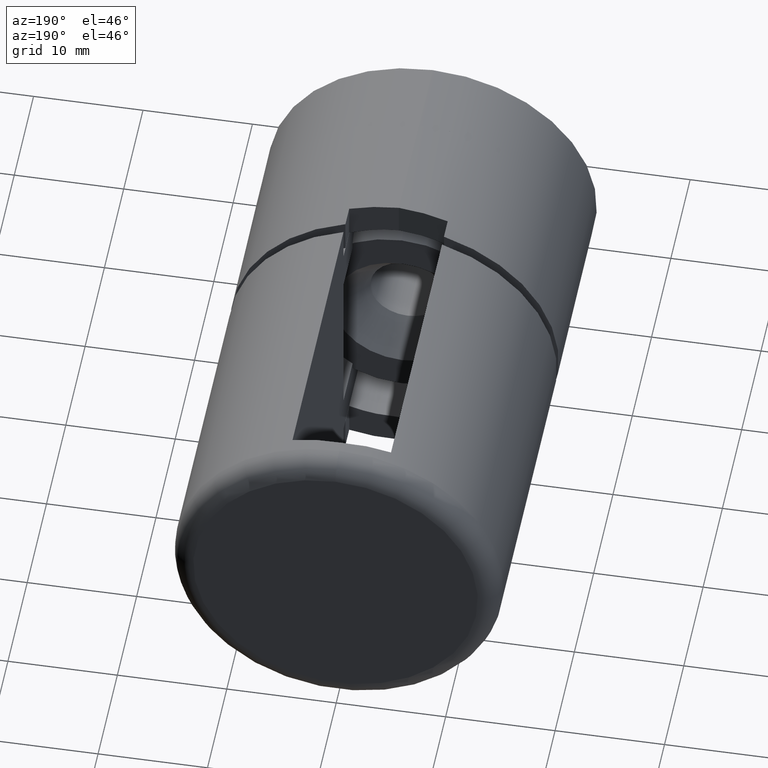
[diagram: clean part render]
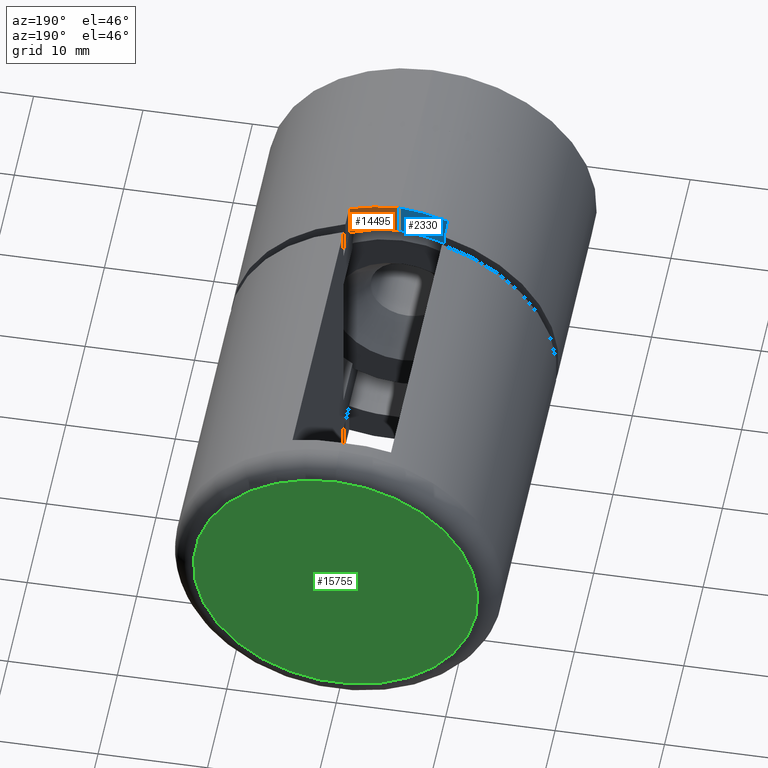
[diagram: same view with three faces highlighted in distinct colors, each labeled with its STEP entity id]
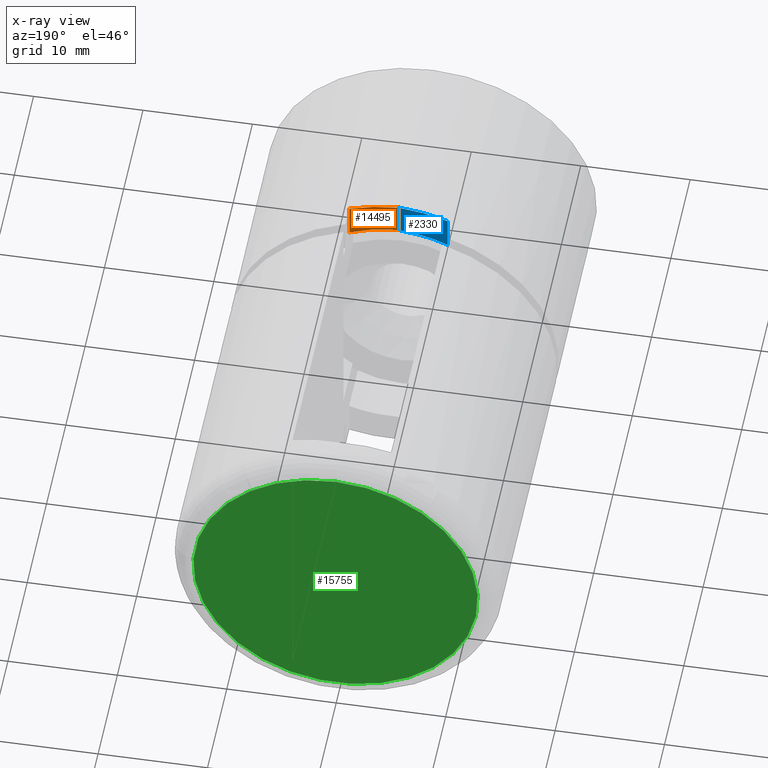
[diagram: x-ray of the same camera — body ghosted, the three highlighted faces saturated]
A machine part, auxiliary view with three faces highlighted in distinct colors.
The next image is the same camera in x-ray (body ghosted, the three faces saturated) — at least one of them is partly hidden behind the body in this view.
Their STEP definitions:

[orange] entity #14495 — the highlighted planar face has unit normal (0.0523, -0.9986, -0).
#301 = AXIS2_PLACEMENT_3D ( 'NONE', #8761, #16853, #8876 ) ;
#475 = VERTEX_POINT ( 'NONE', #13259 ) ;
#1141 = EDGE_CURVE ( 'NONE', #3556, #4096, #10408, .T. ) ;
#1859 = ORIENTED_EDGE ( 'NONE', *, *, #1141, .T. ) ;
#2489 = DIRECTION ( 'NONE',  ( -0.0000000000000000000, -0.0000000000000000000, 1.000000000000000000 ) ) ;
#3185 = CARTESIAN_POINT ( 'NONE',  ( 0.0000000000000000000, 2.189999999999999100, 15.00000000000000000 ) ) ;
#3364 = FACE_OUTER_BOUND ( 'NONE', #9624, .T. ) ;
#3556 = VERTEX_POINT ( 'NONE', #10166 ) ;
#3665 = EDGE_CURVE ( 'NONE', #475, #8822, #9401, .T. ) ;
#3923 = VECTOR ( 'NONE', #2489, 1000.000000000000000 ) ;
#4096 = VERTEX_POINT ( 'NONE', #3185 ) ;
#5456 = EDGE_CURVE ( 'NONE', #8822, #4096, #13552, .T. ) ;
#5809 = EDGE_CURVE ( 'NONE', #475, #3556, #9286, .T. ) ;
#6089 = PLANE ( 'NONE',  #301 ) ;
#7485 = CARTESIAN_POINT ( 'NONE',  ( 0.0000000000000000000, 2.189999999999999100, 12.09999999999999600 ) ) ;
#7577 = CARTESIAN_POINT ( 'NONE',  ( -4.500000000000000000, 1.954164993226297200, -15.00000000000000000 ) ) ;
#7718 = CARTESIAN_POINT ( 'NONE',  ( -1.529386172815875100, 2.109848267016523900, 14.99999999999999800 ) ) ;
#7755 = CARTESIAN_POINT ( 'NONE',  ( 0.0000000000000000000, 2.189999999999999100, -15.00000000000000000 ) ) ;
#7972 = ORIENTED_EDGE ( 'NONE', *, *, #3665, .F. ) ;
#8761 = CARTESIAN_POINT ( 'NONE',  ( 0.0000000000000000000, 2.189999999999999100, -15.00000000000000000 ) ) ;
#8822 = VERTEX_POINT ( 'NONE', #11074 ) ;
#8876 = DIRECTION ( 'NONE',  ( -0.9986295347545737200, -0.05233595624294751900, 0.0000000000000000000 ) ) ;
#8883 = DIRECTION ( 'NONE',  ( -0.0000000000000000000, -0.0000000000000000000, 1.000000000000000000 ) ) ;
#8991 = ORIENTED_EDGE ( 'NONE', *, *, #5809, .T. ) ;
#9286 =( BOUNDED_CURVE ( )  B_SPLINE_CURVE ( 3, ( #12693, #15461, #16833, #7485 ),
 .UNSPECIFIED., .F., .T. ) 
 B_SPLINE_CURVE_WITH_KNOTS ( ( 4, 4 ),
 ( 1.189740440798325400, 1.570796326794896600 ),
 .UNSPECIFIED. ) 
 CURVE ( )  GEOMETRIC_REPRESENTATION_ITEM ( )  RATIONAL_B_SPLINE_CURVE ( ( 1.000000000000000000, 0.9879362610244385400, 0.9879362610244385400, 1.000000000000000000 ) ) 
 REPRESENTATION_ITEM ( '' )  );
#9401 = LINE ( 'NONE', #7577, #12503 ) ;
#9624 = EDGE_LOOP ( 'NONE', ( #7972, #8991, #1859, #10640 ) ) ;
#10166 = CARTESIAN_POINT ( 'NONE',  ( 0.0000000000000000000, 2.189999999999999100, 12.09999999999999600 ) ) ;
#10408 = LINE ( 'NONE', #7755, #3923 ) ;
#10640 = ORIENTED_EDGE ( 'NONE', *, *, #5456, .F. ) ;
#11074 = CARTESIAN_POINT ( 'NONE',  ( -4.500000000000000000, 1.954164993226297200, 14.30908802125418300 ) ) ;
#11598 = CARTESIAN_POINT ( 'NONE',  ( 0.0000000000000000000, 2.189999999999999100, 15.00000000000000000 ) ) ;
#12503 = VECTOR ( 'NONE', #8883, 1000.000000000000000 ) ;
#12693 = CARTESIAN_POINT ( 'NONE',  ( -4.500000000000000000, 1.954164993226297200, 11.23209686567917100 ) ) ;
#13259 = CARTESIAN_POINT ( 'NONE',  ( -4.500000000000000000, 1.954164993226297200, 11.23209686567917100 ) ) ;
#13552 =( BOUNDED_CURVE ( )  B_SPLINE_CURVE ( 3, ( #15644, #16910, #7718, #11598 ),
 .UNSPECIFIED., .F., .F. ) 
 B_SPLINE_CURVE_WITH_KNOTS ( ( 4, 4 ),
 ( 1.266103672779499200, 1.570796326794896600 ),
 .UNSPECIFIED. ) 
 CURVE ( )  GEOMETRIC_REPRESENTATION_ITEM ( )  RATIONAL_B_SPLINE_CURVE ( ( 1.000000000000000000, 0.9922784838777378700, 0.9922784838777378700, 1.000000000000000000 ) ) 
 REPRESENTATION_ITEM ( '' )  );
#14495 = ADVANCED_FACE ( 'NONE', ( #3364 ), #6089, .F. ) ;
#15461 = CARTESIAN_POINT ( 'NONE',  ( -3.064614348767007000, 2.029390367622165400, 11.80716628573424600 ) ) ;
#15644 = CARTESIAN_POINT ( 'NONE',  ( -4.500000000000000000, 1.954164993226297200, 14.30908802125418300 ) ) ;
#16833 = CARTESIAN_POINT ( 'NONE',  ( -1.546297773925853400, 2.108961967558229800, 12.10000000000000000 ) ) ;
#16853 = DIRECTION ( 'NONE',  ( -0.05233595624294751900, 0.9986295347545737200, 0.0000000000000000000 ) ) ;
#16910 = CARTESIAN_POINT ( 'NONE',  ( -3.041058575645905600, 2.030624873380737500, 14.76790387309894600 ) ) ;

[blue] entity #2330 — the highlighted planar face has unit normal (-0.0523, -0.9986, 0).
#305 = CARTESIAN_POINT ( 'NONE',  ( 4.500000000000000000, 1.954164993226297200, 14.30908802125418300 ) ) ;
#1011 = EDGE_LOOP ( 'NONE', ( #12671, #11116, #3109, #11492 ) ) ;
#1141 = EDGE_CURVE ( 'NONE', #3556, #4096, #10408, .T. ) ;
#1358 = CARTESIAN_POINT ( 'NONE',  ( 1.546297773925850300, 2.108961967558231200, 12.10000000000000000 ) ) ;
#1530 = CARTESIAN_POINT ( 'NONE',  ( 3.064614348767004300, 2.029390367622167200, 11.80716628573424600 ) ) ;
#2330 = ADVANCED_FACE ( 'NONE', ( #8742 ), #6173, .F. ) ;
#2489 = DIRECTION ( 'NONE',  ( -0.0000000000000000000, -0.0000000000000000000, 1.000000000000000000 ) ) ;
#2556 = CARTESIAN_POINT ( 'NONE',  ( 4.500000000000000000, 1.954164993226297200, 14.30908802125418300 ) ) ;
#3109 = ORIENTED_EDGE ( 'NONE', *, *, #7558, .T. ) ;
#3185 = CARTESIAN_POINT ( 'NONE',  ( 0.0000000000000000000, 2.189999999999999100, 15.00000000000000000 ) ) ;
#3556 = VERTEX_POINT ( 'NONE', #10166 ) ;
#3923 = VECTOR ( 'NONE', #2489, 1000.000000000000000 ) ;
#4096 = VERTEX_POINT ( 'NONE', #3185 ) ;
#5596 = CARTESIAN_POINT ( 'NONE',  ( 1.529386172815872400, 2.109848267016525700, 14.99999999999999800 ) ) ;
#6173 = PLANE ( 'NONE',  #14816 ) ;
#7468 = CARTESIAN_POINT ( 'NONE',  ( 4.500000000000000000, 1.954164993226297200, -15.00000000000000000 ) ) ;
#7558 = EDGE_CURVE ( 'NONE', #10812, #11708, #11193, .T. ) ;
#7755 = CARTESIAN_POINT ( 'NONE',  ( 0.0000000000000000000, 2.189999999999999100, -15.00000000000000000 ) ) ;
#7817 =( BOUNDED_CURVE ( )  B_SPLINE_CURVE ( 3, ( #8393, #5596, #14977, #305 ),
 .UNSPECIFIED., .F., .F. ) 
 B_SPLINE_CURVE_WITH_KNOTS ( ( 4, 4 ),
 ( 4.712388980384689700, 5.017081634400087300 ),
 .UNSPECIFIED. ) 
 CURVE ( )  GEOMETRIC_REPRESENTATION_ITEM ( )  RATIONAL_B_SPLINE_CURVE ( ( 1.000000000000000000, 0.9922784838777378700, 0.9922784838777378700, 1.000000000000000000 ) ) 
 REPRESENTATION_ITEM ( '' )  );
#7937 = EDGE_CURVE ( 'NONE', #3556, #10812, #12600, .T. ) ;
#8393 = CARTESIAN_POINT ( 'NONE',  ( 0.0000000000000000000, 2.189999999999999100, 15.00000000000000000 ) ) ;
#8663 = DIRECTION ( 'NONE',  ( -0.9986295347545737200, 0.05233595624294751900, 0.0000000000000000000 ) ) ;
#8742 = FACE_OUTER_BOUND ( 'NONE', #1011, .T. ) ;
#9561 = CARTESIAN_POINT ( 'NONE',  ( 0.0000000000000000000, 2.189999999999999100, 12.09999999999999600 ) ) ;
#10166 = CARTESIAN_POINT ( 'NONE',  ( 0.0000000000000000000, 2.189999999999999100, 12.09999999999999600 ) ) ;
#10408 = LINE ( 'NONE', #7755, #3923 ) ;
#10812 = VERTEX_POINT ( 'NONE', #15608 ) ;
#11116 = ORIENTED_EDGE ( 'NONE', *, *, #7937, .T. ) ;
#11193 = LINE ( 'NONE', #16173, #14760 ) ;
#11492 = ORIENTED_EDGE ( 'NONE', *, *, #12714, .F. ) ;
#11708 = VERTEX_POINT ( 'NONE', #2556 ) ;
#12600 =( BOUNDED_CURVE ( )  B_SPLINE_CURVE ( 3, ( #9561, #1358, #1530, #13279 ),
 .UNSPECIFIED., .F., .T. ) 
 B_SPLINE_CURVE_WITH_KNOTS ( ( 4, 4 ),
 ( 4.712388980384689700, 5.093444866381260800 ),
 .UNSPECIFIED. ) 
 CURVE ( )  GEOMETRIC_REPRESENTATION_ITEM ( )  RATIONAL_B_SPLINE_CURVE ( ( 1.000000000000000000, 0.9879362610244385400, 0.9879362610244385400, 1.000000000000000000 ) ) 
 REPRESENTATION_ITEM ( '' )  );
#12671 = ORIENTED_EDGE ( 'NONE', *, *, #1141, .F. ) ;
#12714 = EDGE_CURVE ( 'NONE', #4096, #11708, #7817, .T. ) ;
#13279 = CARTESIAN_POINT ( 'NONE',  ( 4.500000000000000000, 1.954164993226297700, 11.23209686567917800 ) ) ;
#14098 = DIRECTION ( 'NONE',  ( 0.05233595624294751900, 0.9986295347545737200, 0.0000000000000000000 ) ) ;
#14760 = VECTOR ( 'NONE', #14850, 1000.000000000000000 ) ;
#14816 = AXIS2_PLACEMENT_3D ( 'NONE', #7468, #14098, #8663 ) ;
#14850 = DIRECTION ( 'NONE',  ( -0.0000000000000000000, -0.0000000000000000000, 1.000000000000000000 ) ) ;
#14977 = CARTESIAN_POINT ( 'NONE',  ( 3.041058575645903400, 2.030624873380738800, 14.76790387309894600 ) ) ;
#15608 = CARTESIAN_POINT ( 'NONE',  ( 4.500000000000000000, 1.954164993226297700, 11.23209686567917800 ) ) ;
#16173 = CARTESIAN_POINT ( 'NONE',  ( 4.500000000000000000, 1.954164993226297200, -15.00000000000000000 ) ) ;

[green] entity #15755 — the highlighted planar face has unit normal (0, 1, 0).
#123 = ORIENTED_EDGE ( 'NONE', *, *, #17189, .T. ) ;
#1708 = CARTESIAN_POINT ( 'NONE',  ( 0.0000000000000000000, 1.500000000000000000, -13.00000000000000000 ) ) ;
#3299 = AXIS2_PLACEMENT_3D ( 'NONE', #9812, #9990, #11328 ) ;
#3861 = VERTEX_POINT ( 'NONE', #1708 ) ;
#4528 = CARTESIAN_POINT ( 'NONE',  ( 0.0000000000000000000, 1.500000000000000000, 0.0000000000000000000 ) ) ;
#8482 = PLANE ( 'NONE',  #3299 ) ;
#8719 = EDGE_LOOP ( 'NONE', ( #123 ) ) ;
#9812 = CARTESIAN_POINT ( 'NONE',  ( 0.0000000000000000000, 1.500000000000000000, 0.0000000000000000000 ) ) ;
#9990 = DIRECTION ( 'NONE',  ( 0.0000000000000000000, -1.000000000000000000, 0.0000000000000000000 ) ) ;
#10141 = CIRCLE ( 'NONE', #13954, 13.00000000000000000 ) ;
#11122 = DIRECTION ( 'NONE',  ( 0.0000000000000000000, 0.0000000000000000000, -1.000000000000000000 ) ) ;
#11328 = DIRECTION ( 'NONE',  ( 0.0000000000000000000, -0.0000000000000000000, -1.000000000000000000 ) ) ;
#12397 = DIRECTION ( 'NONE',  ( 0.0000000000000000000, -1.000000000000000000, 0.0000000000000000000 ) ) ;
#13294 = FACE_OUTER_BOUND ( 'NONE', #8719, .T. ) ;
#13954 = AXIS2_PLACEMENT_3D ( 'NONE', #4528, #12397, #11122 ) ;
#15755 = ADVANCED_FACE ( 'NONE', ( #13294 ), #8482, .T. ) ;
#17189 = EDGE_CURVE ( 'NONE', #3861, #3861, #10141, .T. ) ;